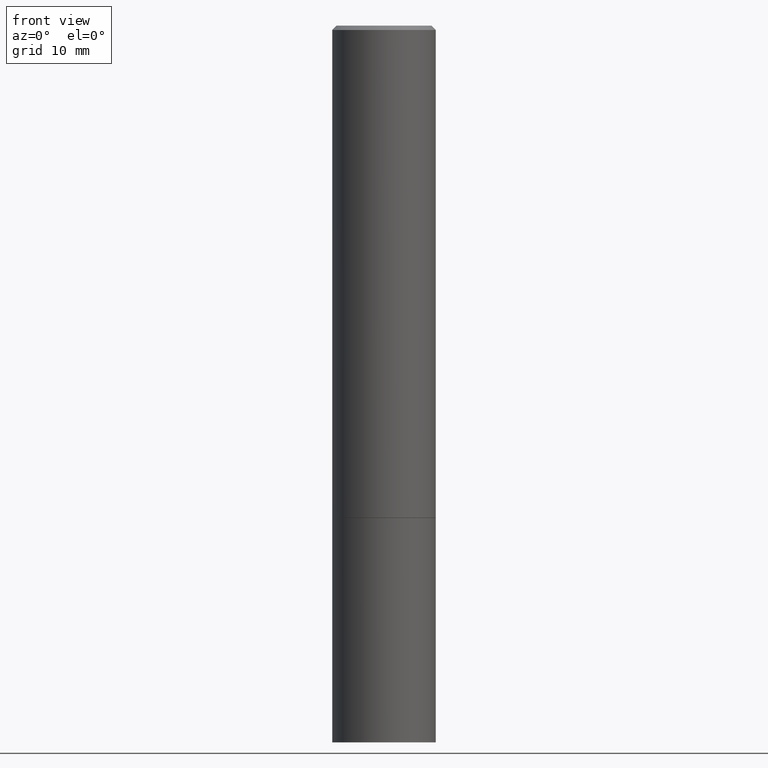
[diagram: clean part render]
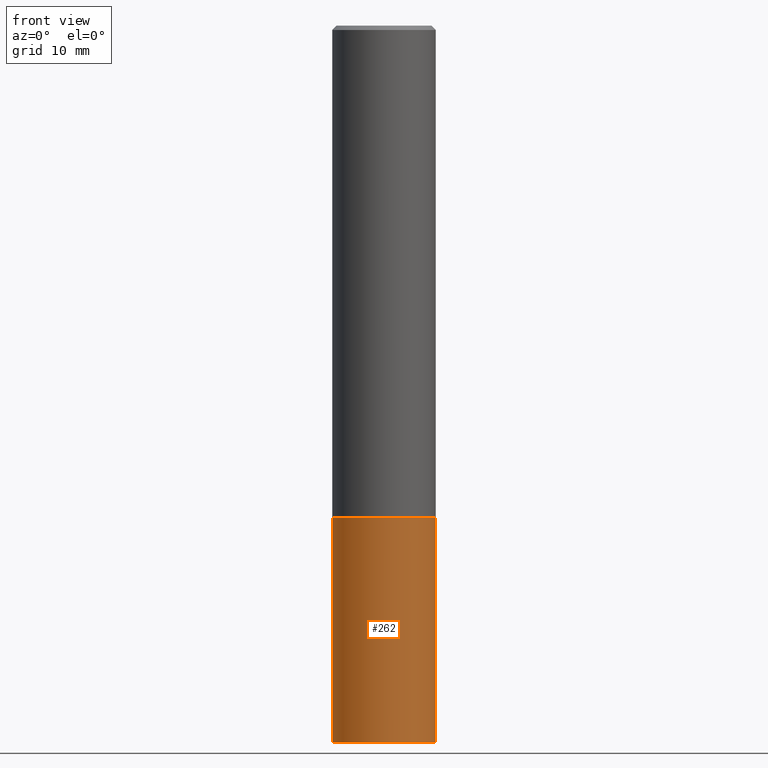
[diagram: same view with one face highlighted and labeled with its STEP entity id]
A machine part, front view. The second image highlights one B-rep face of the part: STEP entity #262.
In plain terms, the highlighted cylindrical surface (partial cylindrical patch) has radius 5.9995 mm, axis along (-0, 0, 1).
Its self-contained STEP definition (entity closure, byte-faithful):
#4 = CARTESIAN_POINT ( 'NONE',  ( 5.487876547960065873E-29, -7.835233272497903917E-15, -2.244100000000000428 ) ) ;
#8 = VECTOR ( 'NONE', #320, 39.37007874015748143 ) ;
#39 = VECTOR ( 'NONE', #221, 39.37007874015748143 ) ;
#44 = CARTESIAN_POINT ( 'NONE',  ( -0.2361999999999999933, -7.943871479852467996E-15, -2.244100000000000428 ) ) ;
#48 = CIRCLE ( 'NONE', #71, 0.2361999999999999933 ) ;
#71 = AXIS2_PLACEMENT_3D ( 'NONE', #304, #90, #225 ) ;
#87 = CARTESIAN_POINT ( 'NONE',  ( 0.2361999999999999933, -1.649375784469496131E-15, 1.151752954443000088E-29 ) ) ;
#90 = DIRECTION ( 'NONE',  ( -2.445468806185136597E-29, 3.491481338843145583E-15, 1.000000000000000000 ) ) ;
#95 = LINE ( 'NONE', #202, #8 ) ;
#106 = VERTEX_POINT ( 'NONE', #231 ) ;
#116 = EDGE_CURVE ( 'NONE', #151, #264, #48, .T. ) ;
#151 = VERTEX_POINT ( 'NONE', #288 ) ;
#152 = EDGE_LOOP ( 'NONE', ( #303, #208, #299, #329 ) ) ;
#171 = AXIS2_PLACEMENT_3D ( 'NONE', #4, #253, #306 ) ;
#177 = DIRECTION ( 'NONE',  ( 1.000000000000000000, -6.982962677686266711E-15, 4.876176775795936353E-29 ) ) ;
#191 = EDGE_CURVE ( 'NONE', #151, #215, #95, .T. ) ;
#202 = CARTESIAN_POINT ( 'NONE',  ( -0.2361999999999999933, 1.678301941865356591E-15, -1.161852468318208757E-29 ) ) ;
#206 = FACE_OUTER_BOUND ( 'NONE', #152, .T. ) ;
#208 = ORIENTED_EDGE ( 'NONE', *, *, #116, .T. ) ;
#215 = VERTEX_POINT ( 'NONE', #44 ) ;
#221 = DIRECTION ( 'NONE',  ( -2.445468806185136877E-29, 3.491481338843145188E-15, 1.000000000000000000 ) ) ;
#225 = DIRECTION ( 'NONE',  ( 1.000000000000000000, -6.982962677686265133E-15, 0.000000000000000000 ) ) ;
#231 = CARTESIAN_POINT ( 'NONE',  ( 0.2361999999999999933, -9.484609056967400443E-15, -2.244100000000000428 ) ) ;
#239 = CARTESIAN_POINT ( 'NONE',  ( 0.000000000000000000, 0.000000000000000000, 0.000000000000000000 ) ) ;
#253 = DIRECTION ( 'NONE',  ( -2.445468806185136597E-29, 3.491481338843145583E-15, 1.000000000000000000 ) ) ;
#262 = ADVANCED_FACE ( 'NONE', ( #206 ), #271, .T. ) ;
#264 = VERTEX_POINT ( 'NONE', #266 ) ;
#266 = CARTESIAN_POINT ( 'NONE',  ( 0.2361999999999999933, -1.305848935540724297E-14, -3.267700000000000049 ) ) ;
#271 = CYLINDRICAL_SURFACE ( 'NONE', #323, 0.2361999999999999933 ) ;
#288 = CARTESIAN_POINT ( 'NONE',  ( -0.2361999999999999933, -7.943871479852467996E-15, -3.267700000000000049 ) ) ;
#299 = ORIENTED_EDGE ( 'NONE', *, *, #357, .T. ) ;
#303 = ORIENTED_EDGE ( 'NONE', *, *, #191, .F. ) ;
#304 = CARTESIAN_POINT ( 'NONE',  ( 7.991058417971171713E-29, -1.140911357093774644E-14, -3.267700000000000049 ) ) ;
#306 = DIRECTION ( 'NONE',  ( 1.000000000000000000, -6.982962677686269077E-15, 0.000000000000000000 ) ) ;
#310 = LINE ( 'NONE', #87, #39 ) ;
#320 = DIRECTION ( 'NONE',  ( -2.445468806185136877E-29, 3.491481338843145188E-15, 1.000000000000000000 ) ) ;
#323 = AXIS2_PLACEMENT_3D ( 'NONE', #239, #324, #177 ) ;
#324 = DIRECTION ( 'NONE',  ( -2.445468806185136597E-29, 3.491481338843145583E-15, 1.000000000000000000 ) ) ;
#329 = ORIENTED_EDGE ( 'NONE', *, *, #332, .F. ) ;
#332 = EDGE_CURVE ( 'NONE', #215, #106, #348, .T. ) ;
#348 = CIRCLE ( 'NONE', #171, 0.2361999999999999933 ) ;
#357 = EDGE_CURVE ( 'NONE', #264, #106, #310, .T. ) ;